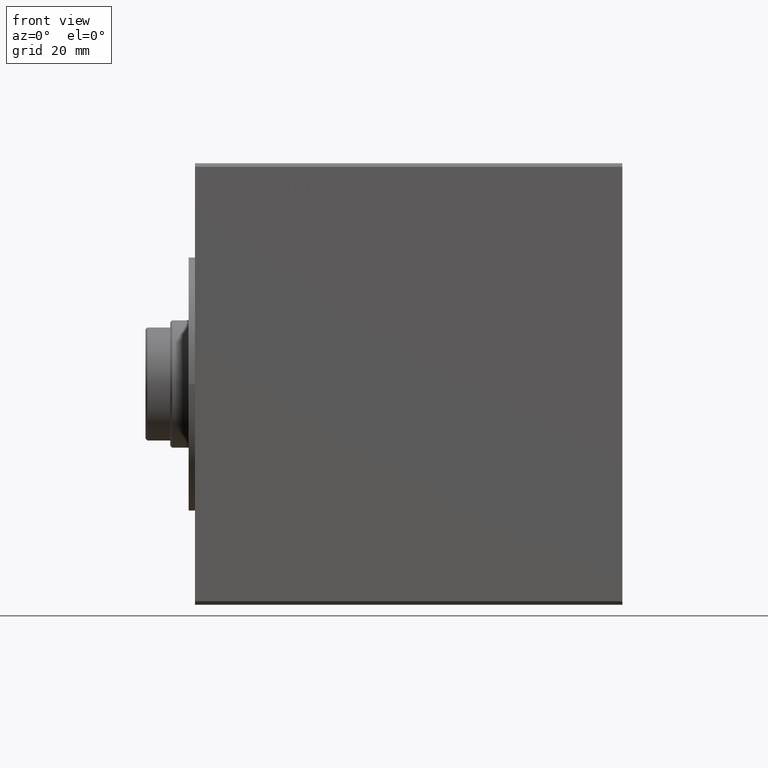
[diagram: clean part render]
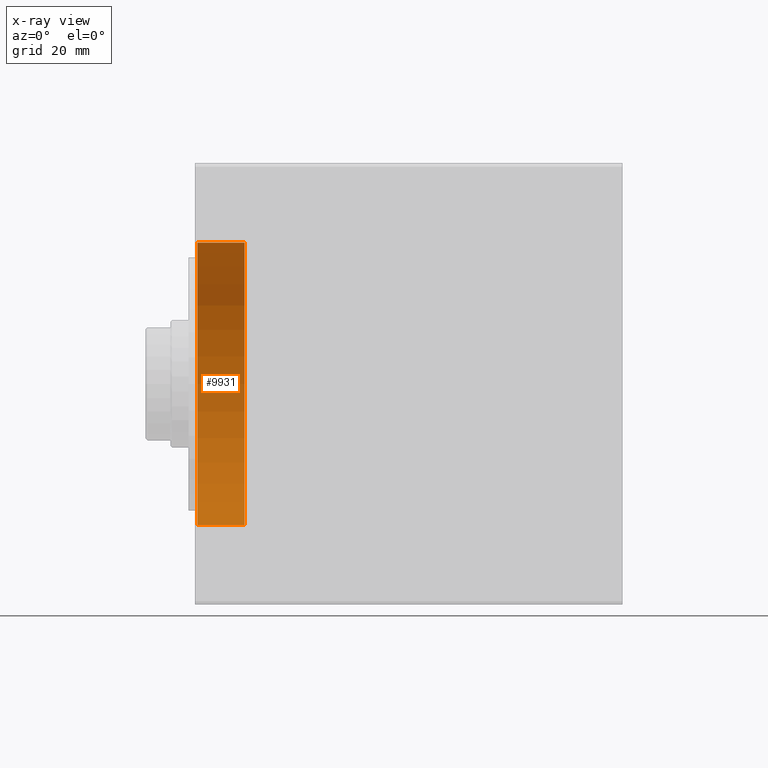
[diagram: x-ray — body ghosted, one internal face saturated and labeled with its STEP entity id]
A machine part, front view, then the same camera in x-ray: the body is ghosted and one INTERNAL B-rep face — a face not visible from any outside direction — is saturated and labeled: STEP entity #9931.
In plain terms, the highlighted cylindrical surface (partial cylindrical patch) has radius 40 mm, axis along (-1, -0, -0).
Its self-contained STEP definition (entity closure, byte-faithful):
#581 = CARTESIAN_POINT ( 'NONE',  ( 14.00000000000000000, 0.000000000000000000, 0.000000000000000000 ) ) ;
#2151 = VERTEX_POINT ( 'NONE', #7885 ) ;
#2610 = ORIENTED_EDGE ( 'NONE', *, *, #21313, .T. ) ;
#6560 = DIRECTION ( 'NONE',  ( 0.000000000000000000, 0.000000000000000000, 1.000000000000000000 ) ) ;
#7263 = CYLINDRICAL_SURFACE ( 'NONE', #20157, 40.00000000000000000 ) ;
#7885 = CARTESIAN_POINT ( 'NONE',  ( 14.00000000000000000, 4.898587196589413026E-15, -40.00000000000000000 ) ) ;
#9606 = CARTESIAN_POINT ( 'NONE',  ( 14.00000000000000000, 4.898587196589413026E-15, -40.00000000000000000 ) ) ;
#9785 = CIRCLE ( 'NONE', #38900, 40.00000000000000000 ) ;
#9931 = ADVANCED_FACE ( 'NONE', ( #41291 ), #7263, .F. ) ;
#10140 = VERTEX_POINT ( 'NONE', #31198 ) ;
#10805 = DIRECTION ( 'NONE',  ( -1.000000000000000000, -0.000000000000000000, -0.000000000000000000 ) ) ;
#11722 = CARTESIAN_POINT ( 'NONE',  ( 14.00000000000000000, 0.000000000000000000, 40.00000000000000000 ) ) ;
#13457 = EDGE_CURVE ( 'NONE', #2151, #35574, #25811, .T. ) ;
#13631 = CARTESIAN_POINT ( 'NONE',  ( 0.7000000000000130562, 4.898587196589413026E-15, -40.00000000000000000 ) ) ;
#14574 = DIRECTION ( 'NONE',  ( 0.000000000000000000, 0.000000000000000000, 1.000000000000000000 ) ) ;
#17066 = CIRCLE ( 'NONE', #17771, 40.00000000000000000 ) ;
#17301 = ORIENTED_EDGE ( 'NONE', *, *, #13457, .F. ) ;
#17636 = EDGE_CURVE ( 'NONE', #22273, #2151, #17066, .T. ) ;
#17771 = AXIS2_PLACEMENT_3D ( 'NONE', #23436, #40374, #6560 ) ;
#19410 = VECTOR ( 'NONE', #35762, 1000.000000000000000 ) ;
#20157 = AXIS2_PLACEMENT_3D ( 'NONE', #581, #10805, #14574 ) ;
#21313 = EDGE_CURVE ( 'NONE', #10140, #35574, #9785, .T. ) ;
#21776 = DIRECTION ( 'NONE',  ( 0.000000000000000000, 0.000000000000000000, -1.000000000000000000 ) ) ;
#22273 = VERTEX_POINT ( 'NONE', #11722 ) ;
#22405 = LINE ( 'NONE', #36427, #19410 ) ;
#23436 = CARTESIAN_POINT ( 'NONE',  ( 14.00000000000000000, 0.000000000000000000, 0.000000000000000000 ) ) ;
#24530 = ORIENTED_EDGE ( 'NONE', *, *, #17636, .F. ) ;
#24874 = CARTESIAN_POINT ( 'NONE',  ( 0.7000000000000130562, 0.000000000000000000, 0.000000000000000000 ) ) ;
#25811 = LINE ( 'NONE', #9606, #42526 ) ;
#26427 = EDGE_LOOP ( 'NONE', ( #17301, #24530, #26527, #2610 ) ) ;
#26527 = ORIENTED_EDGE ( 'NONE', *, *, #35346, .T. ) ;
#31198 = CARTESIAN_POINT ( 'NONE',  ( 0.7000000000000130562, 0.000000000000000000, 40.00000000000000000 ) ) ;
#35346 = EDGE_CURVE ( 'NONE', #22273, #10140, #22405, .T. ) ;
#35551 = DIRECTION ( 'NONE',  ( -1.000000000000000000, 0.000000000000000000, 0.000000000000000000 ) ) ;
#35574 = VERTEX_POINT ( 'NONE', #13631 ) ;
#35762 = DIRECTION ( 'NONE',  ( -1.000000000000000000, -0.000000000000000000, -0.000000000000000000 ) ) ;
#36427 = CARTESIAN_POINT ( 'NONE',  ( 14.00000000000000000, 0.000000000000000000, 40.00000000000000000 ) ) ;
#38900 = AXIS2_PLACEMENT_3D ( 'NONE', #24874, #35551, #21776 ) ;
#39408 = DIRECTION ( 'NONE',  ( -1.000000000000000000, -0.000000000000000000, -0.000000000000000000 ) ) ;
#40374 = DIRECTION ( 'NONE',  ( -1.000000000000000000, 0.000000000000000000, 0.000000000000000000 ) ) ;
#41291 = FACE_OUTER_BOUND ( 'NONE', #26427, .T. ) ;
#42526 = VECTOR ( 'NONE', #39408, 1000.000000000000000 ) ;